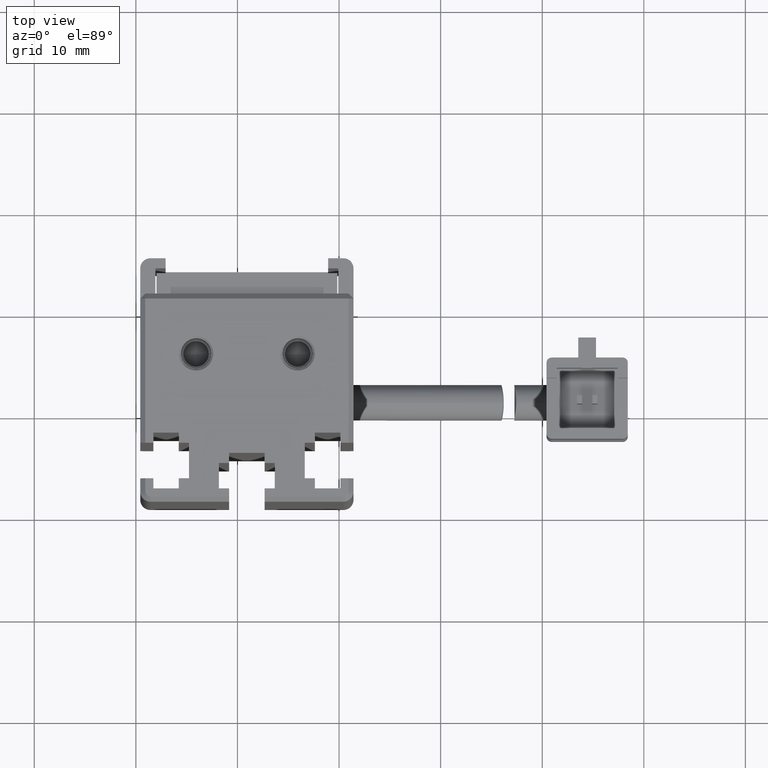
[diagram: clean part render]
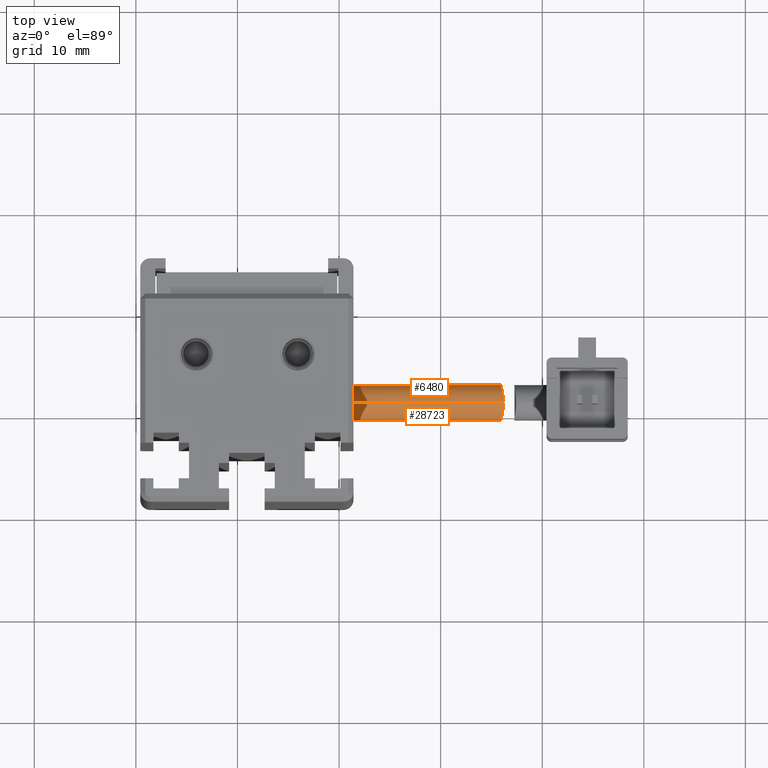
[diagram: same view with one multi-face feature highlighted, each face labeled with its STEP entity id]
A machine part, top view. The highlighted faces form ONE feature: a constant-radius fillet chain: 2 tangent blend faces with common blend radius 1.75 mm. The faces share edges in the B-rep.
Their STEP definitions:
[1] entity #6480 (Cylinder):
#716 = CARTESIAN_POINT ( 'NONE',  ( 66.20621967933264800, 21.72282869244823500, -137.1999999999999600 ) ) ;
#984 = ORIENTED_EDGE ( 'NONE', *, *, #32222, .F. ) ;
#990 = CARTESIAN_POINT ( 'NONE',  ( 65.98134991565429200, 23.24078982580402600, -135.5637194744111600 ) ) ;
#2271 = ORIENTED_EDGE ( 'NONE', *, *, #30516, .T. ) ;
#2275 = DIRECTION ( 'NONE',  ( 0.0000000000000000000, 0.0000000000000000000, 1.000000000000000000 ) ) ;
#3141 = EDGE_LOOP ( 'NONE', ( #2271, #14681, #6133, #984 ) ) ;
#3587 = CARTESIAN_POINT ( 'NONE',  ( 66.16909918599567700, 21.49073232304855800, -133.7000000000000200 ) ) ;
#3658 = CARTESIAN_POINT ( 'NONE',  ( 71.42537974683536100, 21.49073232304857600, -137.2000000000000200 ) ) ;
#3736 = CARTESIAN_POINT ( 'NONE',  ( 66.16909918599567700, 21.49073232304855800, -133.7000000000000200 ) ) ;
#3852 = CARTESIAN_POINT ( 'NONE',  ( 66.19668055208005300, 21.95177912622206800, -137.1536289975071800 ) ) ;
#3969 = CARTESIAN_POINT ( 'NONE',  ( 66.01781632386865800, 23.15157741340437500, -136.0132809039904500 ) ) ;
#4106 = CARTESIAN_POINT ( 'NONE',  ( 66.16564187166542900, 21.72081579437508100, -133.7114329739076800 ) ) ;
#4941 = VECTOR ( 'NONE', #24898, 1000.000000000000000 ) ;
#5548 = DIRECTION ( 'NONE',  ( -1.000000000000000000, -3.304235192336770000E-015, -8.579261317967046800E-031 ) ) ;
#6133 = ORIENTED_EDGE ( 'NONE', *, *, #11315, .T. ) ;
#6480 = ADVANCED_FACE ( 'NONE', ( #12501 ), #28847, .T. ) ;
#6604 = CARTESIAN_POINT ( 'NONE',  ( 66.06343873949747100, 22.64709544356476600, -134.1315777397997200 ) ) ;
#6983 = CARTESIAN_POINT ( 'NONE',  ( 66.13743220877901800, 22.56061969415858900, -136.8395406144934700 ) ) ;
#8572 = VERTEX_POINT ( 'NONE', #20327 ) ;
#9322 = CARTESIAN_POINT ( 'NONE',  ( 51.42537974683536100, 21.49073232304850800, -135.4500000000000200 ) ) ;
#9673 = CARTESIAN_POINT ( 'NONE',  ( 66.15272929082431100, 21.94491196028725700, -133.7561066842592900 ) ) ;
#9812 = CARTESIAN_POINT ( 'NONE',  ( 66.07835221810198300, 22.55760743916209400, -134.0581316121933400 ) ) ;
#10073 = CARTESIAN_POINT ( 'NONE',  ( 66.16064130294124400, 22.37141064514802100, -136.9665380968415300 ) ) ;
#10459 = CARTESIAN_POINT ( 'NONE',  ( 71.42537974683536100, 21.49073232304857600, -133.7000000000000200 ) ) ;
#11315 = EDGE_CURVE ( 'NONE', #8572, #30764, #32412, .T. ) ;
#12501 = FACE_OUTER_BOUND ( 'NONE', #3141, .T. ) ;
#12685 = CARTESIAN_POINT ( 'NONE',  ( 66.05492445293647600, 23.01977546981315800, -136.3316429091015600 ) ) ;
#12924 = EDGE_CURVE ( 'NONE', #31335, #8572, #12936, .T. ) ;
#12931 = CARTESIAN_POINT ( 'NONE',  ( 66.17113496622533800, 22.26883414955935700, -137.0216747521505200 ) ) ;
#12936 = LINE ( 'NONE', #3658, #4941 ) ;
#14355 = CARTESIAN_POINT ( 'NONE',  ( 51.42537974683536100, 21.49073232304850800, -133.7000000000000200 ) ) ;
#14681 = ORIENTED_EDGE ( 'NONE', *, *, #12924, .T. ) ;
#15223 = DIRECTION ( 'NONE',  ( 0.0000000000000000000, 0.0000000000000000000, 1.000000000000000000 ) ) ;
#15797 = CARTESIAN_POINT ( 'NONE',  ( 65.99693793915955100, 23.01894157653051200, -134.5672986979646500 ) ) ;
#15937 = CARTESIAN_POINT ( 'NONE',  ( 66.16909918599564800, 21.60680859003607800, -133.6999999999999600 ) ) ;
#16064 = CARTESIAN_POINT ( 'NONE',  ( 65.96799919059766600, 23.24061665153340400, -135.2199166147517800 ) ) ;
#18674 = CARTESIAN_POINT ( 'NONE',  ( 66.12463420223004100, 22.64847476324764100, -136.7673024940898500 ) ) ;
#18941 = CARTESIAN_POINT ( 'NONE',  ( 66.08400798320374700, 22.89150646391434300, -136.5237529889950000 ) ) ;
#20327 = CARTESIAN_POINT ( 'NONE',  ( 51.42537974683536100, 21.49073232304853300, -137.2000000000000200 ) ) ;
#21212 = DIRECTION ( 'NONE',  ( 1.000000000000000000, 3.304235192336770000E-015, 8.579261317967046800E-031 ) ) ;
#21808 = CARTESIAN_POINT ( 'NONE',  ( 66.14312513808744100, 22.05618387698943300, -133.7899194494976600 ) ) ;
#22084 = CARTESIAN_POINT ( 'NONE',  ( 66.12003836585687100, 22.26761315901731600, -133.8777216974355900 ) ) ;
#22100 = AXIS2_PLACEMENT_3D ( 'NONE', #26112, #5548, #2275 ) ;
#24569 = LINE ( 'NONE', #10459, #38104 ) ;
#24696 = CARTESIAN_POINT ( 'NONE',  ( 65.98855349268929200, 23.22932324687323200, -135.6799364845565500 ) ) ;
#24898 = DIRECTION ( 'NONE',  ( -1.000000000000000000, -3.304235192336770000E-015, -8.579261317967046800E-031 ) ) ;
#25092 = CARTESIAN_POINT ( 'NONE',  ( 65.97024437261939100, 23.19420936625597200, -134.9887505292055900 ) ) ;
#26070 = CARTESIAN_POINT ( 'NONE',  ( 66.20621967933266200, 21.49073232304855800, -137.1999999999999900 ) ) ;
#26112 = CARTESIAN_POINT ( 'NONE',  ( 71.42537974683536100, 21.49073232304857600, -135.4500000000000200 ) ) ;
#28847 = CYLINDRICAL_SURFACE ( 'NONE', #22100, 1.750000000000001600 ) ;
#30516 = EDGE_CURVE ( 'NONE', #35439, #31335, #35148, .T. ) ;
#30582 = CARTESIAN_POINT ( 'NONE',  ( 66.02159805663031000, 22.88828370669178000, -134.3725020553220900 ) ) ;
#30764 = VERTEX_POINT ( 'NONE', #14355 ) ;
#30973 = CARTESIAN_POINT ( 'NONE',  ( 66.20621967933266200, 21.49073232304855800, -137.1999999999999900 ) ) ;
#31073 = AXIS2_PLACEMENT_3D ( 'NONE', #9322, #21212, #15223 ) ;
#31225 = DIRECTION ( 'NONE',  ( -1.000000000000000000, -3.304235192336770000E-015, -8.579261317967046800E-031 ) ) ;
#31335 = VERTEX_POINT ( 'NONE', #26070 ) ;
#32222 = EDGE_CURVE ( 'NONE', #35439, #30764, #24569, .T. ) ;
#32412 = CIRCLE ( 'NONE', #31073, 1.750000000000001600 ) ;
#35148 = B_SPLINE_CURVE_WITH_KNOTS ( 'NONE', 3,
 ( #3587, #15937, #4106, #9673, #21808, #22084, #36437, #9812, #6604, #30582, #15797, #25092, #16064, #990, #24696, #36963, #3969, #12685, #18941, #18674, #6983, #10073, #12931, #3852, #716, #30973 ),
 .UNSPECIFIED., .F., .F.,
 ( 4, 2, 2, 2, 2, 2, 2, 2, 2, 2, 2, 2, 4 ),
 ( 0.005490571999674979600, 0.005833718808239048500, 0.006176865616803117400, 0.006520012425367186300, 0.006863159233931255200, 0.007549452851059330500, 0.008235746468187404200, 0.008578893276751483500, 0.008922040085315562800, 0.009608333702443790800, 0.009951480511007904800, 0.01029462731957201900, 0.01098092093670028300 ),
 .UNSPECIFIED. ) ;
#35439 = VERTEX_POINT ( 'NONE', #3736 ) ;
#36437 = CARTESIAN_POINT ( 'NONE',  ( 66.10664507071447800, 22.36783389789094300, -133.9313779437375400 ) ) ;
#36963 = CARTESIAN_POINT ( 'NONE',  ( 66.00678294115667200, 23.18463344848184700, -135.9041675512315200 ) ) ;
#38104 = VECTOR ( 'NONE', #31225, 1000.000000000000000 ) ;
[2] entity #28723 (Cylinder):
#69 = CARTESIAN_POINT ( 'NONE',  ( 71.42537974683536100, 21.49073232304857600, -135.4500000000000200 ) ) ;
#945 = CARTESIAN_POINT ( 'NONE',  ( 66.20390138008309600, 21.26062417110182400, -137.1885704476976000 ) ) ;
#963 = AXIS2_PLACEMENT_3D ( 'NONE', #36814, #30966, #22464 ) ;
#3658 = CARTESIAN_POINT ( 'NONE',  ( 71.42537974683536100, 21.49073232304857600, -137.2000000000000200 ) ) ;
#3736 = CARTESIAN_POINT ( 'NONE',  ( 66.16909918599567700, 21.49073232304855800, -133.7000000000000200 ) ) ;
#3933 = CARTESIAN_POINT ( 'NONE',  ( 66.12460940034066000, 20.33289083467249400, -136.7671338581188000 ) ) ;
#4212 = EDGE_LOOP ( 'NONE', ( #21398, #15814, #24319, #6075 ) ) ;
#4597 = CARTESIAN_POINT ( 'NONE',  ( 65.97065476178855200, 19.75195885195751100, -135.2212418624716300 ) ) ;
#4729 = CARTESIAN_POINT ( 'NONE',  ( 66.07810076657452200, 20.42231531355382800, -134.0593477912411200 ) ) ;
#4941 = VECTOR ( 'NONE', #24898, 1000.000000000000000 ) ;
#6075 = ORIENTED_EDGE ( 'NONE', *, *, #20255, .T. ) ;
#7598 = CARTESIAN_POINT ( 'NONE',  ( 66.16909918599567700, 21.49073232304855800, -133.7000000000000200 ) ) ;
#7724 = CARTESIAN_POINT ( 'NONE',  ( 65.97280863591524300, 19.79670929018426400, -134.9961834804894400 ) ) ;
#7855 = CARTESIAN_POINT ( 'NONE',  ( 65.97674975456151000, 19.82986165832780000, -134.8867513380907900 ) ) ;
#8430 = EDGE_CURVE ( 'NONE', #31335, #35439, #24695, .T. ) ;
#8572 = VERTEX_POINT ( 'NONE', #20327 ) ;
#10459 = CARTESIAN_POINT ( 'NONE',  ( 71.42537974683536100, 21.49073232304857600, -133.7000000000000200 ) ) ;
#10829 = CARTESIAN_POINT ( 'NONE',  ( 66.15457117823017100, 21.02994706544156900, -133.7463689643743100 ) ) ;
#12924 = EDGE_CURVE ( 'NONE', #31335, #8572, #12936, .T. ) ;
#12936 = LINE ( 'NONE', #3658, #4941 ) ;
#13001 = CARTESIAN_POINT ( 'NONE',  ( 66.05492220013285000, 19.96182696463409200, -136.3312831179887000 ) ) ;
#13663 = CARTESIAN_POINT ( 'NONE',  ( 65.99681660540062500, 19.96193764474621100, -134.5678160555280000 ) ) ;
#14355 = CARTESIAN_POINT ( 'NONE',  ( 51.42537974683536100, 21.49073232304850800, -133.7000000000000200 ) ) ;
#14758 = CYLINDRICAL_SURFACE ( 'NONE', #18171, 1.750000000000001600 ) ;
#15814 = ORIENTED_EDGE ( 'NONE', *, *, #8430, .T. ) ;
#16271 = CARTESIAN_POINT ( 'NONE',  ( 66.17117312302134700, 20.71299618687269700, -137.0218756747875700 ) ) ;
#16787 = CARTESIAN_POINT ( 'NONE',  ( 66.11999622660434300, 20.71354430800201000, -133.8778917883745400 ) ) ;
#16922 = CARTESIAN_POINT ( 'NONE',  ( 66.02121001940464900, 20.09098345961682200, -134.3748734586274900 ) ) ;
#18171 = AXIS2_PLACEMENT_3D ( 'NONE', #69, #27018, #35528 ) ;
#19301 = CARTESIAN_POINT ( 'NONE',  ( 65.98599951797790200, 19.74101606756723400, -135.6810619186153100 ) ) ;
#20255 = EDGE_CURVE ( 'NONE', #30764, #8572, #31935, .T. ) ;
#20327 = CARTESIAN_POINT ( 'NONE',  ( 51.42537974683536100, 21.49073232304853300, -137.2000000000000200 ) ) ;
#21398 = ORIENTED_EDGE ( 'NONE', *, *, #12924, .F. ) ;
#21901 = CARTESIAN_POINT ( 'NONE',  ( 66.13767043200717000, 20.42254390752244200, -136.8408778375836900 ) ) ;
#22295 = CARTESIAN_POINT ( 'NONE',  ( 65.97252778088122200, 19.74059244864715300, -135.3377076749584100 ) ) ;
#22464 = DIRECTION ( 'NONE',  ( 0.0000000000000000000, 0.0000000000000000000, 1.000000000000000000 ) ) ;
#24319 = ORIENTED_EDGE ( 'NONE', *, *, #32222, .T. ) ;
#24569 = LINE ( 'NONE', #10459, #38104 ) ;
#24695 = B_SPLINE_CURVE_WITH_KNOTS ( 'NONE', 3,
 ( #27765, #36775, #945, #28297, #31323, #16271, #30920, #21901, #3933, #37174, #13001, #33902, #19301, #22295, #4597, #7724, #7855, #13663, #16922, #28680, #4729, #37700, #16787, #10829, #34299, #7598 ),
 .UNSPECIFIED., .F., .F.,
 ( 4, 2, 2, 2, 2, 2, 2, 2, 2, 2, 2, 2, 4 ),
 ( 2.081668171172168500E-017, 0.0003431607499797082300, 0.0006863214999593956500, 0.001029482249939083300, 0.001372642999918770500, 0.002058964499878157900, 0.002745285999837544900, 0.003088446749817196100, 0.003431607499796847300, 0.004117928999756225600, 0.004461089749735919700, 0.004804250499715612100, 0.005490571999674979600 ),
 .UNSPECIFIED. ) ;
#24898 = DIRECTION ( 'NONE',  ( -1.000000000000000000, -3.304235192336770000E-015, -8.579261317967046800E-031 ) ) ;
#26070 = CARTESIAN_POINT ( 'NONE',  ( 66.20621967933266200, 21.49073232304855800, -137.1999999999999900 ) ) ;
#27018 = DIRECTION ( 'NONE',  ( -1.000000000000000000, -3.304235192336770000E-015, -8.579261317967046800E-031 ) ) ;
#27765 = CARTESIAN_POINT ( 'NONE',  ( 66.20621967933266200, 21.49073232304855800, -137.1999999999999900 ) ) ;
#28297 = CARTESIAN_POINT ( 'NONE',  ( 66.19496276555766200, 21.03633168118914700, -137.1438409074873400 ) ) ;
#28680 = CARTESIAN_POINT ( 'NONE',  ( 66.06345805648925300, 20.33446100659061200, -134.1313984176798900 ) ) ;
#28723 = ADVANCED_FACE ( 'NONE', ( #32079 ), #14758, .T. ) ;
#30764 = VERTEX_POINT ( 'NONE', #14355 ) ;
#30920 = CARTESIAN_POINT ( 'NONE',  ( 66.16091813003936300, 20.61255936552064200, -136.9680184145168500 ) ) ;
#30966 = DIRECTION ( 'NONE',  ( 1.000000000000000000, 3.304235192336770000E-015, 8.579261317967046800E-031 ) ) ;
#31225 = DIRECTION ( 'NONE',  ( -1.000000000000000000, -3.304235192336770000E-015, -8.579261317967046800E-031 ) ) ;
#31323 = CARTESIAN_POINT ( 'NONE',  ( 66.18822953472890400, 20.92490558211200700, -137.1099719075165000 ) ) ;
#31335 = VERTEX_POINT ( 'NONE', #26070 ) ;
#31935 = CIRCLE ( 'NONE', #963, 1.750000000000001600 ) ;
#32079 = FACE_OUTER_BOUND ( 'NONE', #4212, .T. ) ;
#32222 = EDGE_CURVE ( 'NONE', #35439, #30764, #24569, .T. ) ;
#33902 = CARTESIAN_POINT ( 'NONE',  ( 66.00588664361791300, 19.78737048454823700, -135.9112699601981000 ) ) ;
#34299 = CARTESIAN_POINT ( 'NONE',  ( 66.16909918599569100, 21.25857035714853900, -133.7000000000000500 ) ) ;
#35439 = VERTEX_POINT ( 'NONE', #3736 ) ;
#35528 = DIRECTION ( 'NONE',  ( 0.0000000000000000000, 0.0000000000000000000, 1.000000000000000000 ) ) ;
#36775 = CARTESIAN_POINT ( 'NONE',  ( 66.20621967933267600, 21.37467942352718700, -137.1999999999999900 ) ) ;
#36814 = CARTESIAN_POINT ( 'NONE',  ( 51.42537974683536100, 21.49073232304850800, -135.4500000000000200 ) ) ;
#37174 = CARTESIAN_POINT ( 'NONE',  ( 66.08432375002451000, 20.09174899000161200, -136.5256856806185200 ) ) ;
#37700 = CARTESIAN_POINT ( 'NONE',  ( 66.10631114892369500, 20.61124924129202500, -133.9327861123732100 ) ) ;
#38104 = VECTOR ( 'NONE', #31225, 1000.000000000000000 ) ;